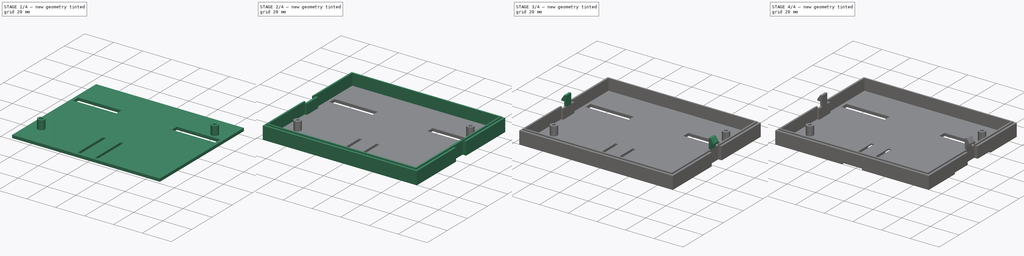
[diagram: build sequence overview — one tinted view per stage of 4, left to right]
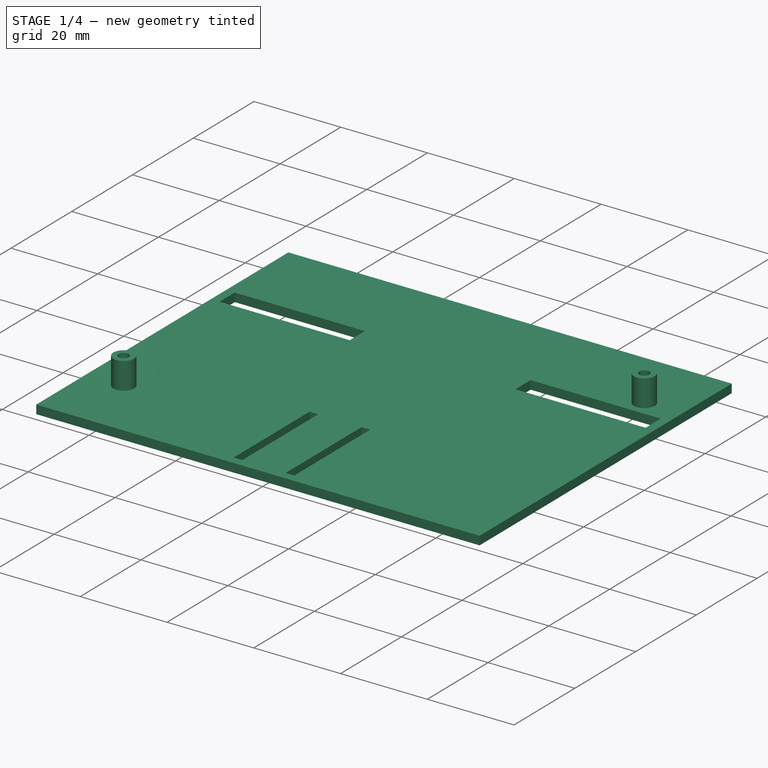
[diagram: stage 1 of 4 — iso view after this stage's code; geometry added in this stage tinted green]
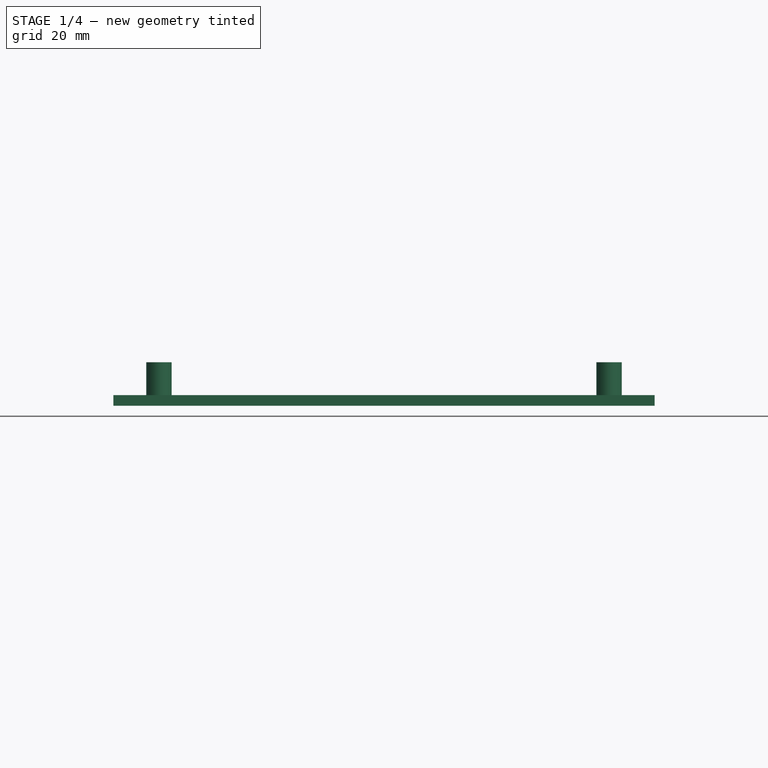
[diagram: stage 1 of 4 — front view after this stage's code; geometry added in this stage tinted green]
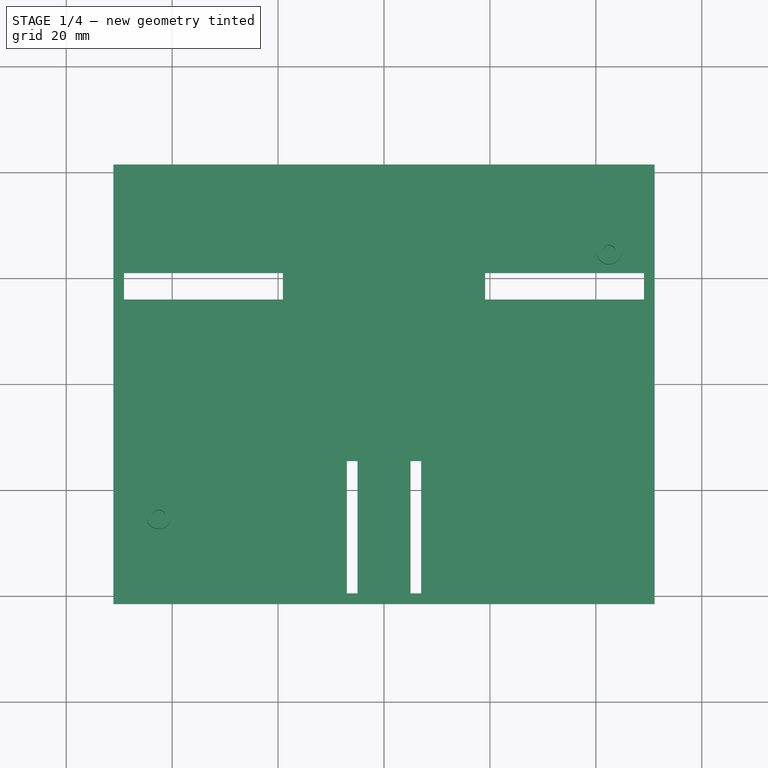
[diagram: stage 1 of 4 — top view after this stage's code; geometry added in this stage tinted green]
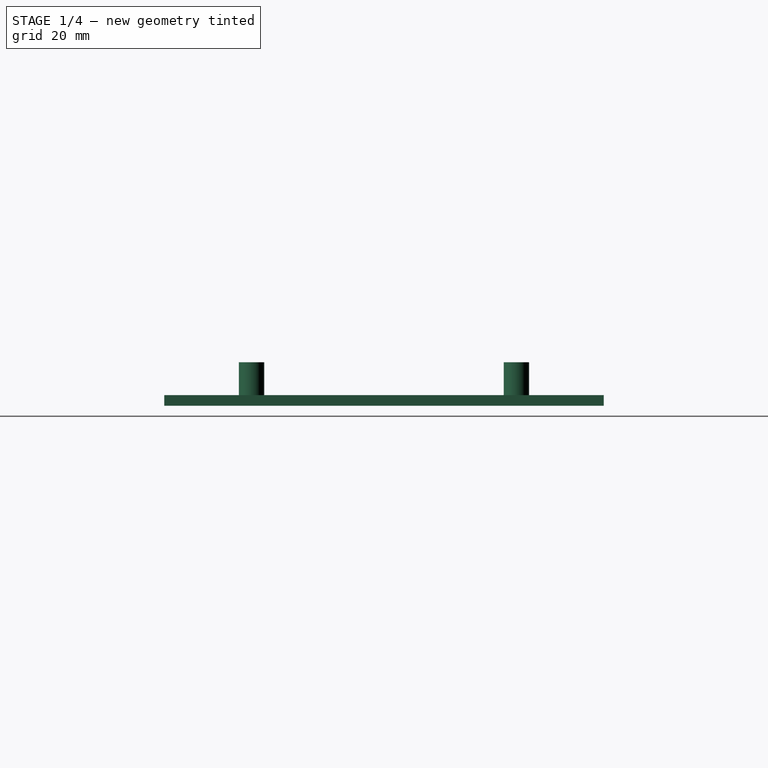
[diagram: stage 1 of 4 — right view after this stage's code; geometry added in this stage tinted green]
FCSTD DOCUMENT  (FreeCAD 1.0R39285 (Git))
Label: Parte inferior
License: All rights reserved
LicenseURL: https://en.wikipedia.org/wiki/All_rights_reserved
objects: Sketcher::SketchObject×10, PartDesign::Pad×7, PartDesign::Pocket×2, PartDesign::Mirrored×1, PartDesign::Body×1
note: 50 computed .brp shape members not serialized (recipe doc carries the construction recipe); baked Part::Feature solids carry a one-line shape summary decoded from their .brp

FEATURE [Sketcher::SketchObject] Sketch
  ArcFitTolerance = 1e-06
  AttachmentSupport = -> [XY_Plane]
  FullyConstrained = true
  MakeInternals = false
  MapMode = 5
  sketch-geometry (21):
    g0: LineSegment StartX=-51.1 StartY=-41.5 StartZ=0 EndX=51.1 EndY=-41.5 EndZ=0
    g1: LineSegment StartX=51.1 StartY=-41.5 StartZ=0 EndX=51.1 EndY=41.5 EndZ=0
    g2: LineSegment StartX=51.1 StartY=41.5 StartZ=0 EndX=-51.1 EndY=41.5 EndZ=0
    g3: LineSegment StartX=-51.1 StartY=41.5 StartZ=0 EndX=-51.1 EndY=-41.5 EndZ=0
    g4: GeomPoint [constr] X=0 Y=0 Z=0
    g5: LineSegment StartX=19.1 StartY=21 StartZ=0 EndX=19.1 EndY=16 EndZ=0
    g6: LineSegment StartX=19.1 StartY=16 StartZ=0 EndX=49.1 EndY=16 EndZ=0
    g7: LineSegment StartX=49.1 StartY=16 StartZ=0 EndX=49.1 EndY=21 EndZ=0
    g8: LineSegment StartX=49.1 StartY=21 StartZ=0 EndX=19.1 EndY=21 EndZ=0
    g9: LineSegment StartX=5 StartY=-14.5 StartZ=0 EndX=5 EndY=-39.5 EndZ=0
    g10: LineSegment StartX=5 StartY=-39.5 StartZ=0 EndX=7 EndY=-39.5 EndZ=0
    g11: LineSegment StartX=7 StartY=-39.5 StartZ=0 EndX=7 EndY=-14.5 EndZ=0
    g12: LineSegment StartX=7 StartY=-14.5 StartZ=0 EndX=5 EndY=-14.5 EndZ=0
    g13: LineSegment StartX=-19.1 StartY=21 StartZ=0 EndX=-19.1 EndY=16 EndZ=0
    g14: LineSegment StartX=-19.1 StartY=16 StartZ=0 EndX=-49.1 EndY=16 EndZ=0
    g15: LineSegment StartX=-49.1 StartY=16 StartZ=0 EndX=-49.1 EndY=21 EndZ=0
    g16: LineSegment StartX=-49.1 StartY=21 StartZ=0 EndX=-19.1 EndY=21 EndZ=0
    g17: LineSegment StartX=-5 StartY=-14.5 StartZ=0 EndX=-5 EndY=-39.5 EndZ=0
    g18: LineSegment StartX=-5 StartY=-39.5 StartZ=0 EndX=-7 EndY=-39.5 EndZ=0
    g19: LineSegment StartX=-7 StartY=-39.5 StartZ=0 EndX=-7 EndY=-14.5 EndZ=0
    g20: LineSegment StartX=-7 StartY=-14.5 StartZ=0 EndX=-5 EndY=-14.5 EndZ=0
  constraints (60):
    c: Coincident(g0,g1)
    c: Coincident(g1,g2)
    c: Coincident(g2,g3)
    c: Coincident(g3,g0)
    c: Horizontal(g0)
    c: Horizontal(g2)
    c: Vertical(g1)
    c: Vertical(g3)
    c: Symmetric(g2,g0,g4)
    c: Coincident(g4,g-1)
    c: Coincident(g5,g6)
    c: Coincident(g6,g7)
    c: Coincident(g7,g8)
    c: Coincident(g8,g5)
    c: Vertical(g5)
    c: Vertical(g7)
    c: Horizontal(g6)
    c: Horizontal(g8)
    c: Coincident(g9,g10)
    c: Coincident(g10,g11)
    c: Coincident(g11,g12)
    c: Coincident(g12,g9)
    c: Vertical(g9)
    c: Vertical(g11)
    c: Horizontal(g10)
    c: Horizontal(g12)
    c: DistanceX(g8,g8) = 30
    c: Distance(g-1,g6) = 16
    c: Distance(g0,g10) = 2
    c: Distance(g-2,g9) = 5
    c: Coincident(g13,g14)
    c: Coincident(g14,g15)
    c: Coincident(g15,g16)
    c: Coincident(g16,g13)
    c: Vertical(g13)
    c: Vertical(g15)
    c: Horizontal(g14)
    c: Horizontal(g16)
    c: Coincident(g17,g18)
    c: Coincident(g18,g19)
    c: Coincident(g19,g20)
    c: Coincident(g20,g17)
    c: Vertical(g17)
    c: Vertical(g19)
    c: Horizontal(g18)
    c: Horizontal(g20)
    c: Distance(g15,g15) = 5
    c: Distance(g20,g20) = 2
    c: DistanceX(g16,g16) = 30
    c: Distance(g3,g15) = 2
    c: DistanceY(g19,g19) = 25
    c: Distance(g-2,g1) = 51.1
    c: Distance(g-1,g0) = 41.5
    c: Distance(g5,g5) = 5
    c: Distance(g13,g-1) = 16
    c: DistanceY(g19,g13) = 35.5
    c: DistanceY(g11,g5) = 35.5
    c: Distance(g12,g12) = 2
    c: Distance(g-2,g17) = 5
    c: Distance(g1,g7) = 2
FEATURE [PartDesign::Pad] Pad
  Direction = (0,0,1)
  Length = 2
  Length2 = 10
  Profile = -> Sketch
  ReferenceAxis = -> Sketch [N_Axis]
  Refine = true
  Suppressed = false
  Type = 0
FEATURE [Sketcher::SketchObject] Sketch001
  ArcFitTolerance = 1e-06
  AttachmentSupport = -> [Pad]
  FullyConstrained = true
  MakeInternals = false
  MapMode = 5
  Placement = pos=(0,0,2) rot=(0,0,1;0rad)
  sketch-geometry (4):
    g0: Circle CenterX=-42.5 CenterY=-25 CenterZ=0 NormalX=0 NormalY=0 NormalZ=1 AngleXU=0 Radius=2.4
    g1: Circle CenterX=-42.5 CenterY=-25 CenterZ=0 NormalX=0 NormalY=0 NormalZ=1 AngleXU=0 Radius=1.2
    g2: Circle CenterX=42.5 CenterY=25 CenterZ=0 NormalX=0 NormalY=0 NormalZ=1 AngleXU=0 Radius=2.4
    g3: Circle CenterX=42.5 CenterY=25 CenterZ=0 NormalX=0 NormalY=0 NormalZ=1 AngleXU=0 Radius=1.2
  constraints (10):
    c: Coincident(g1,g0)
    c: Distance(g0,g-1) = 25
    c: DistanceX(g0,g-1) = 42.5
    c: Diameter(g0) = 4.8
    c: Diameter(g1) = 2.4
    c: Coincident(g3,g2)
    c: Diameter(g2) = 4.8
    c: Diameter(g3) = 2.4
    c: Distance(g2,g-2) = 42.5
    c: DistanceY(g-1,g2) = 25
FEATURE [PartDesign::Pad] Pad001
  BaseFeature = -> Pad
  Direction = (0,0,1)
  Length = 6.2
  Length2 = 10
  Profile = -> Sketch001
  ReferenceAxis = -> Sketch001 [N_Axis]
  Refine = true
  Suppressed = false
  Type = 0
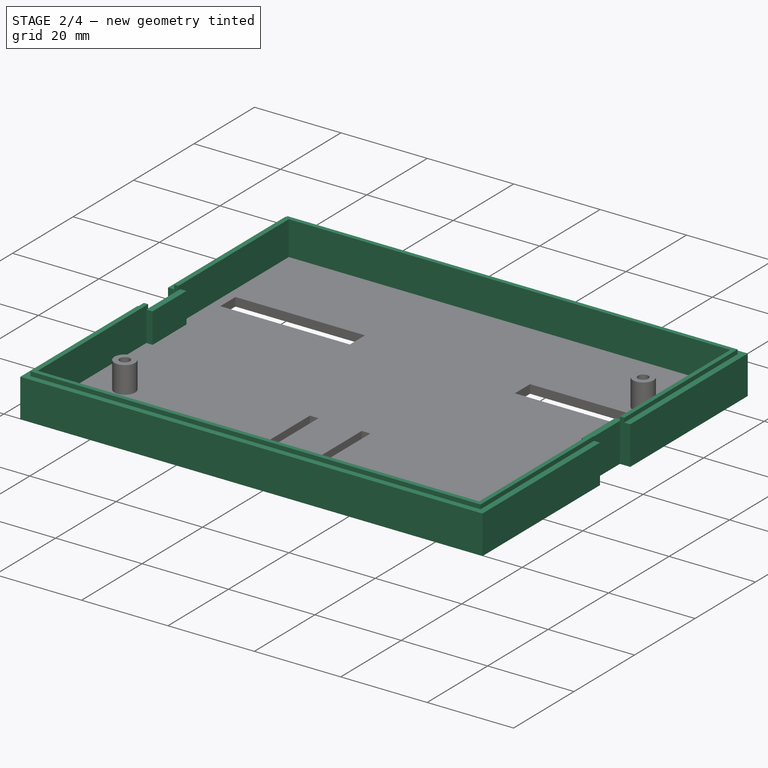
[diagram: stage 2 of 4 — iso view after this stage's code; geometry added in this stage tinted green]
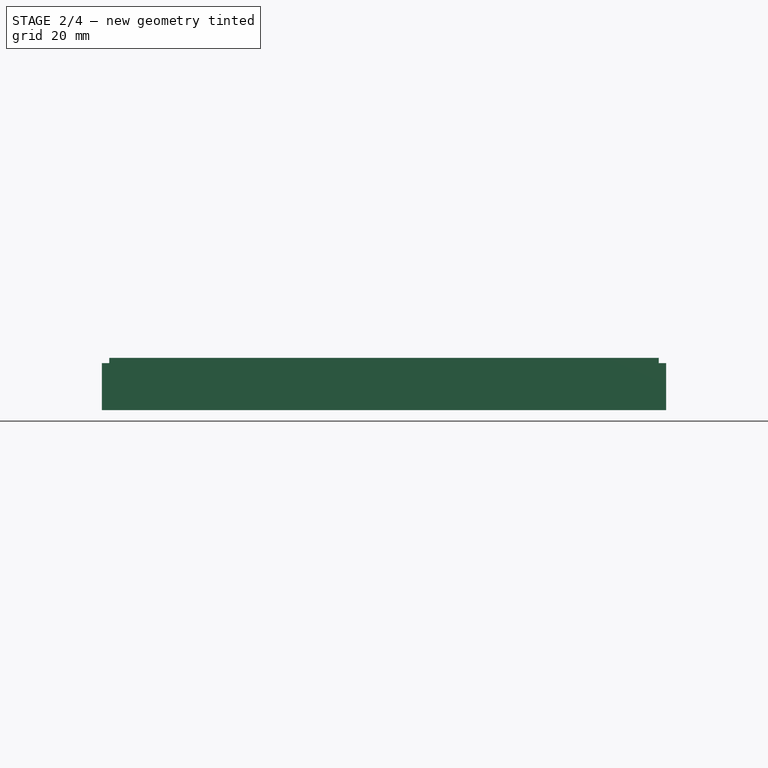
[diagram: stage 2 of 4 — front view after this stage's code; geometry added in this stage tinted green]
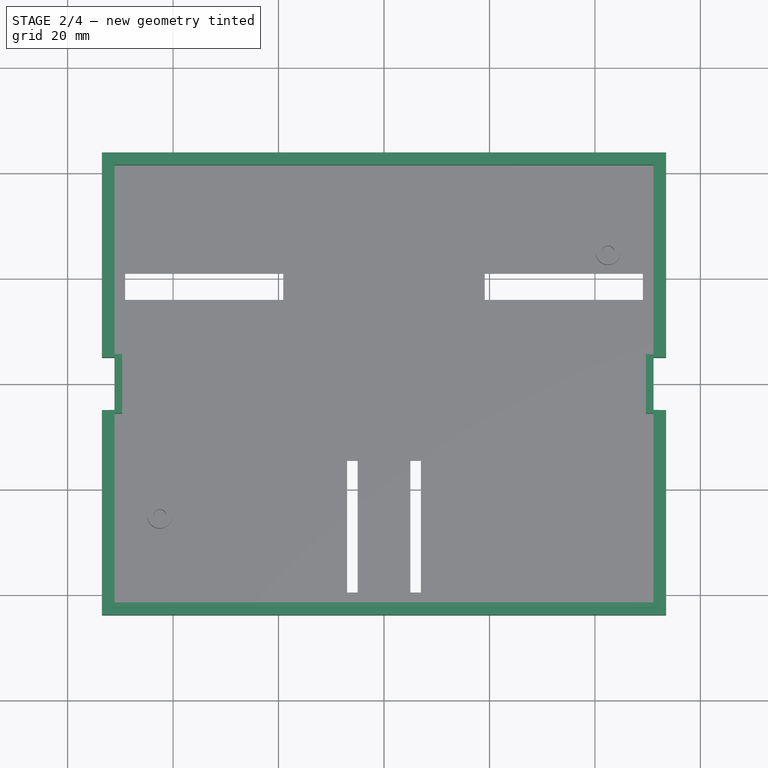
[diagram: stage 2 of 4 — top view after this stage's code; geometry added in this stage tinted green]
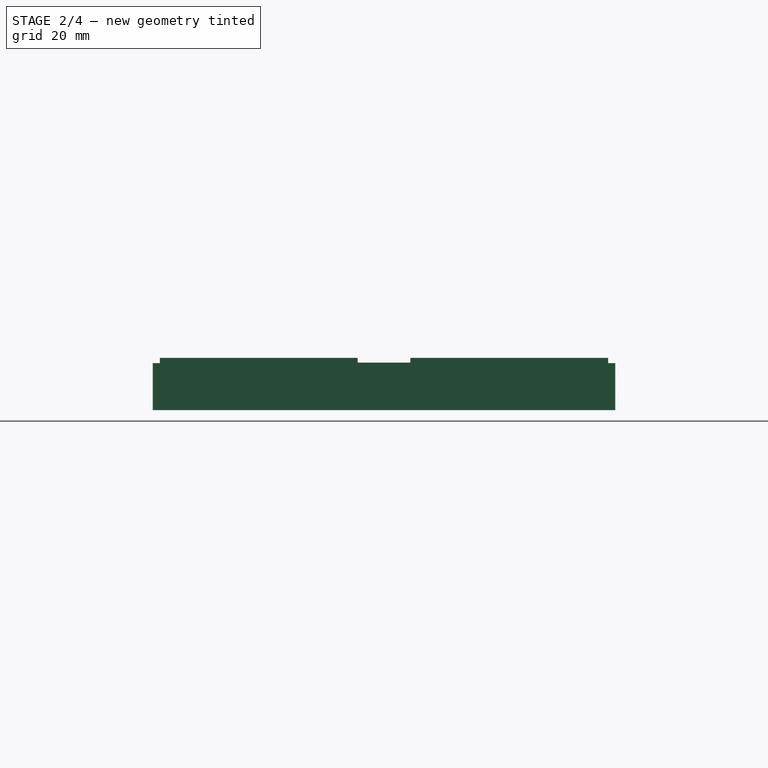
[diagram: stage 2 of 4 — right view after this stage's code; geometry added in this stage tinted green]
FEATURE [Sketcher::SketchObject] Sketch002
  ArcFitTolerance = 1e-06
  AttachmentSupport = -> [Pad001]
  FullyConstrained = true
  MakeInternals = false
  MapMode = 5
  Placement = pos=(0,0,2) rot=(0,0,1;0rad)
  sketch-geometry (16):
    g0: LineSegment StartX=51.1 StartY=5 StartZ=0 EndX=53.5 EndY=5 EndZ=0
    g1: LineSegment StartX=53.5 StartY=5 StartZ=0 EndX=53.5 EndY=43.85 EndZ=0
    g2: LineSegment StartX=53.5 StartY=43.85 StartZ=0 EndX=-53.5 EndY=43.85 EndZ=0
    g3: LineSegment StartX=-53.5 StartY=43.85 StartZ=0 EndX=-53.5 EndY=5 EndZ=0
    g4: LineSegment StartX=-53.5 StartY=5 StartZ=0 EndX=-51.1 EndY=5 EndZ=0
    g5: LineSegment StartX=-51.1 StartY=5 StartZ=0 EndX=-51.1 EndY=41.5 EndZ=0
    g6: LineSegment StartX=-51.1 StartY=41.5 StartZ=0 EndX=51.1 EndY=41.5 EndZ=0
    g7: LineSegment StartX=51.1 StartY=41.5 StartZ=0 EndX=51.1 EndY=5 EndZ=0
    g8: LineSegment StartX=51.1 StartY=-5 StartZ=0 EndX=53.5 EndY=-5 EndZ=0
    g9: LineSegment StartX=53.5 StartY=-5 StartZ=0 EndX=53.5 EndY=-43.85 EndZ=0
    g10: LineSegment StartX=53.5 StartY=-43.85 StartZ=0 EndX=-53.5 EndY=-43.85 EndZ=0
    g11: LineSegment StartX=-53.5 StartY=-43.85 StartZ=0 EndX=-53.5 EndY=-5 EndZ=0
    g12: LineSegment StartX=-53.5 StartY=-5 StartZ=0 EndX=-51.1 EndY=-5 EndZ=0
    g13: LineSegment StartX=-51.1 StartY=-5 StartZ=0 EndX=-51.1 EndY=-41.5 EndZ=0
    g14: LineSegment StartX=-51.1 StartY=-41.5 StartZ=0 EndX=51.1 EndY=-41.5 EndZ=0
    g15: LineSegment StartX=51.1 StartY=-41.5 StartZ=0 EndX=51.1 EndY=-5 EndZ=0
  constraints (48):
    c: Horizontal(g0)
    c: Coincident(g1,g0)
    c: Vertical(g1)
    c: Coincident(g2,g1)
    c: Horizontal(g2)
    c: Coincident(g3,g2)
    c: Vertical(g3)
    c: Coincident(g4,g3)
    c: Horizontal(g4)
    c: Coincident(g5,g4)
    c: Vertical(g5)
    c: Coincident(g6,g5)
    c: Horizontal(g6)
    c: Coincident(g7,g6)
    c: Coincident(g7,g0)
    c: Vertical(g7)
    c: DistanceX(g6,g6) = 102.2
    c: Distance(g6,g-2) = 51.1
    c: Distance(g-1,g6) = 41.5
    c: DistanceX(g2,g2) = 107
    c: Distance(g-1,g0) = 5
    c: Distance(g-1,g4) = 5
    c: Distance(g1,g-1) = 43.85
    c: Distance(g5,g3) = 2.4
    c: Horizontal(g8)
    c: Coincident(g9,g8)
    c: Vertical(g9)
    c: Coincident(g10,g9)
    c: Horizontal(g10)
    c: Coincident(g11,g10)
    c: Vertical(g11)
    c: Coincident(g12,g11)
    c: Horizontal(g12)
    c: Coincident(g13,g12)
    c: Vertical(g13)
    c: Coincident(g14,g13)
    c: Horizontal(g14)
    c: Coincident(g15,g14)
    c: Coincident(g15,g8)
    c: Vertical(g15)
    c: Distance(g13,g11) = 2.4
    c: Distance(g8,g8) = 2.4
    c: Distance(g-1,g8) = 5
    c: Distance(g-1,g12) = 5
    c: DistanceY(g10,g-1) = 43.85
    c: DistanceY(g14,g-1) = 41.5
    c: DistanceX(g-1,g9) = 53.5
    c: Distance(g13,g-2) = 51.1
FEATURE [PartDesign::Pad] Pad002
  BaseFeature = -> Pad001
  Direction = (0,0,1)
  Length = 6.9
  Length2 = 2
  Profile = -> Sketch002
  ReferenceAxis = -> Sketch002 [N_Axis]
  Refine = true
  Suppressed = false
  Type = 4
FEATURE [Sketcher::SketchObject] Sketch003
  ArcFitTolerance = 1e-06
  AttachmentSupport = -> [Pad002]
  FullyConstrained = true
  MakeInternals = false
  MapMode = 5
  Placement = pos=(0,0,8.9) rot=(0,0,1;0rad)
  sketch-geometry (16):
    g0: LineSegment StartX=-52.1 StartY=5 StartZ=0 EndX=-51.1 EndY=5 EndZ=0
    g1: LineSegment StartX=-51.1 StartY=5 StartZ=0 EndX=-51.1 EndY=41.5 EndZ=0
    g2: LineSegment StartX=-51.1 StartY=41.5 StartZ=0 EndX=51.1 EndY=41.5 EndZ=0
    g3: LineSegment StartX=52.1 StartY=42.5 StartZ=0 EndX=-52.1 EndY=42.5 EndZ=0
    g4: LineSegment StartX=51.1 StartY=41.5 StartZ=0 EndX=51.1 EndY=5 EndZ=0
    g5: LineSegment StartX=51.1 StartY=5 StartZ=0 EndX=52.1 EndY=5 EndZ=0
    g6: LineSegment StartX=52.1 StartY=42.5 StartZ=0 EndX=52.1 EndY=5 EndZ=0
    g7: LineSegment StartX=-52.1 StartY=42.5 StartZ=0 EndX=-52.1 EndY=5 EndZ=0
    g8: LineSegment StartX=-52.1 StartY=-5 StartZ=0 EndX=-51.1 EndY=-5 EndZ=0
    g9: LineSegment StartX=-51.1 StartY=-5 StartZ=0 EndX=-51.1 EndY=-41.5 EndZ=0
    g10: LineSegment StartX=-51.1 StartY=-41.5 StartZ=0 EndX=51.1 EndY=-41.5 EndZ=0
    g11: LineSegment StartX=52.1 StartY=-42.5 StartZ=0 EndX=-52.1 EndY=-42.5 EndZ=0
    g12: LineSegment StartX=51.1 StartY=-41.5 StartZ=0 EndX=51.1 EndY=-5 EndZ=0
    g13: LineSegment StartX=51.1 StartY=-5 StartZ=0 EndX=52.1 EndY=-5 EndZ=0
    g14: LineSegment StartX=52.1 StartY=-42.5 StartZ=0 EndX=52.1 EndY=-5 EndZ=0
    g15: LineSegment StartX=-52.1 StartY=-42.5 StartZ=0 EndX=-52.1 EndY=-5 EndZ=0
  constraints (52):
    c: Coincident(g0,g1)
    c: Horizontal(g0)
    c: Vertical(g1)
    c: Horizontal(g2)
    c: Horizontal(g3)
    c: Coincident(g4,g5)
    c: Vertical(g4)
    c: Horizontal(g5)
    c: PointOnObject(g4,g2)
    c: PointOnObject(g2,g1)
    c: Coincident(g6,g3)
    c: Coincident(g6,g5)
    c: Vertical(g6)
    c: Coincident(g7,g3)
    c: Coincident(g7,g0)
    c: Vertical(g7)
    c: Distance(g-1,g0) = 5
    c: Distance(g-1,g5) = 5
    c: DistanceY(g-1,g2) = 41.5
    c: Equal(g4,g1)
    c: Distance(g2,g-2) = 51.1
    c: DistanceX(g-1,g3) = 52.1
    c: DistanceX(g2,g2) = 102.2
    c: DistanceX(g3,g3) = 104.2
    c: Distance(g2,g3) = 1
    c: Distance(g6,g4) = 1
    c: Coincident(g8,g9)
    c: Horizontal(g8)
    c: Vertical(g9)
    c: Horizontal(g10)
    c: Horizontal(g11)
    c: Coincident(g12,g13)
    c: Vertical(g12)
    c: Horizontal(g13)
    c: PointOnObject(g12,g10)
    c: PointOnObject(g10,g9)
    c: Coincident(g14,g11)
    c: Coincident(g14,g13)
    c: Vertical(g14)
    c: Coincident(g15,g11)
    c: Coincident(g15,g8)
    c: Vertical(g15)
    c: Equal(g12,g9)
    c: Distance(g10,g11) = 1
    c: Distance(g14,g12) = 1
    c: Distance(g-1,g13) = 5
    c: Distance(g-1,g8) = 5
    c: DistanceX(g11,g-1) = 52.1
    c: Distance(g9,g-2) = 51.1
    c: DistanceX(g11,g11) = 104.2
    c: DistanceX(g10,g10) = 102.2
    c: DistanceY(g11,g-1) = 42.5
FEATURE [PartDesign::Pad] Pad003
  BaseFeature = -> Pad002
  Direction = (0,0,1)
  Length = 1
  Length2 = 10
  Profile = -> Sketch003
  ReferenceAxis = -> Sketch003 [N_Axis]
  Refine = true
  Suppressed = false
  Type = 0
FEATURE [Sketcher::SketchObject] Sketch004
  ArcFitTolerance = 1e-06
  AttachmentSupport = -> [Pad003]
  FullyConstrained = true
  MakeInternals = false
  MapMode = 5
  Placement = pos=(0,0,2) rot=(0,0,1;0rad)
  sketch-geometry (8):
    g0: LineSegment StartX=49.65 StartY=5.6 StartZ=0 EndX=49.65 EndY=-5.6 EndZ=0
    g1: LineSegment StartX=49.65 StartY=-5.6 StartZ=0 EndX=51.1 EndY=-5.6 EndZ=0
    g2: LineSegment StartX=51.1 StartY=-5.6 StartZ=0 EndX=51.1 EndY=5.6 EndZ=0
    g3: LineSegment StartX=51.1 StartY=5.6 StartZ=0 EndX=49.65 EndY=5.6 EndZ=0
    g4: LineSegment StartX=-49.65 StartY=5.6 StartZ=0 EndX=-49.65 EndY=-5.6 EndZ=0
    g5: LineSegment StartX=-49.65 StartY=-5.6 StartZ=0 EndX=-51.1 EndY=-5.6 EndZ=0
    g6: LineSegment StartX=-51.1 StartY=-5.6 StartZ=0 EndX=-51.1 EndY=5.6 EndZ=0
    g7: LineSegment StartX=-51.1 StartY=5.6 StartZ=0 EndX=-49.65 EndY=5.6 EndZ=0
  constraints (24):
    c: Coincident(g0,g1)
    c: Coincident(g1,g2)
    c: Coincident(g2,g3)
    c: Coincident(g3,g0)
    c: Vertical(g0)
    c: Vertical(g2)
    c: Horizontal(g1)
    c: Horizontal(g3)
    c: Distance(g3,g3) = 1.45
    c: Distance(g0,g-1) = 5.6
    c: DistanceY(g0,g0) = 11.2
    c: Distance(g-2,g2) = 51.1
    c: Coincident(g4,g5)
    c: Coincident(g5,g6)
    c: Coincident(g6,g7)
    c: Coincident(g7,g4)
    c: Vertical(g4)
    c: Vertical(g6)
    c: Horizontal(g5)
    c: Horizontal(g7)
    c: Distance(g7,g7) = 1.45
    c: Distance(g4,g-1) = 5.6
    c: DistanceY(g4,g4) = 11.2
    c: Distance(g-2,g6) = 51.1
FEATURE [PartDesign::Pad] Pad004
  BaseFeature = -> Pad003
  Direction = (0,0,1)
  Length = 7
  Length2 = 10
  Profile = -> Sketch004
  ReferenceAxis = -> Sketch004 [N_Axis]
  Refine = true
  Suppressed = false
  Type = 0
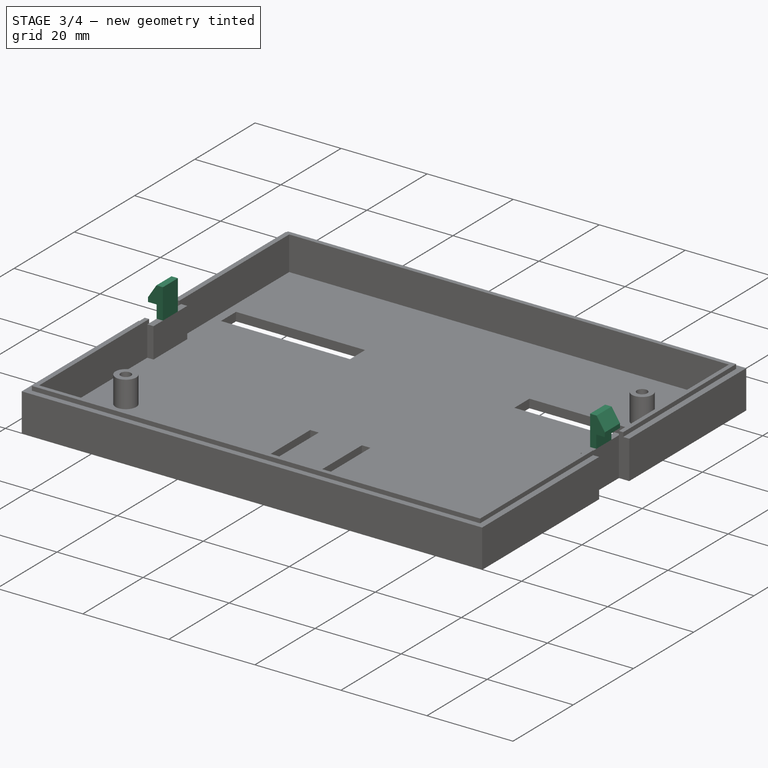
[diagram: stage 3 of 4 — iso view after this stage's code; geometry added in this stage tinted green]
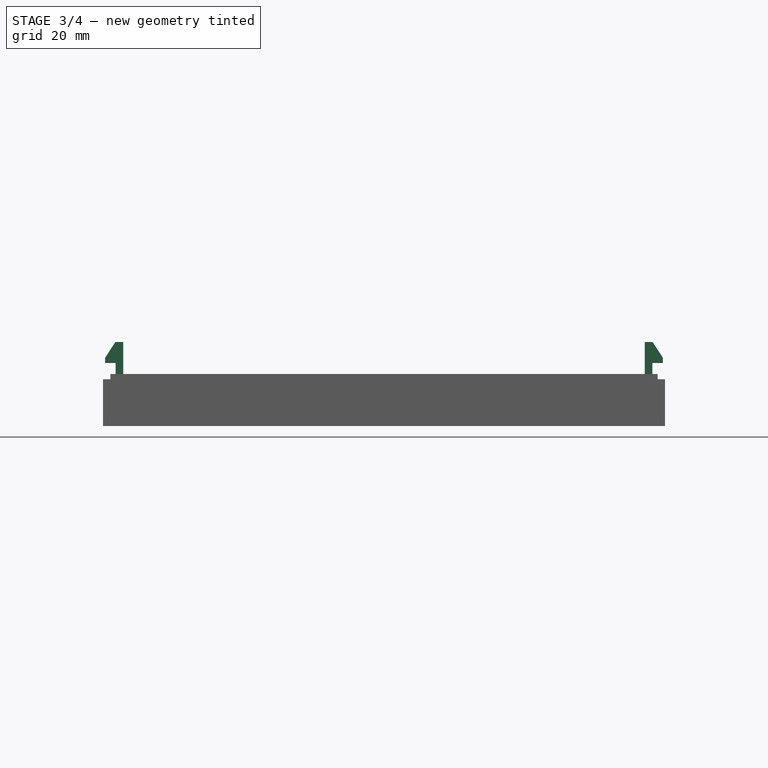
[diagram: stage 3 of 4 — front view after this stage's code; geometry added in this stage tinted green]
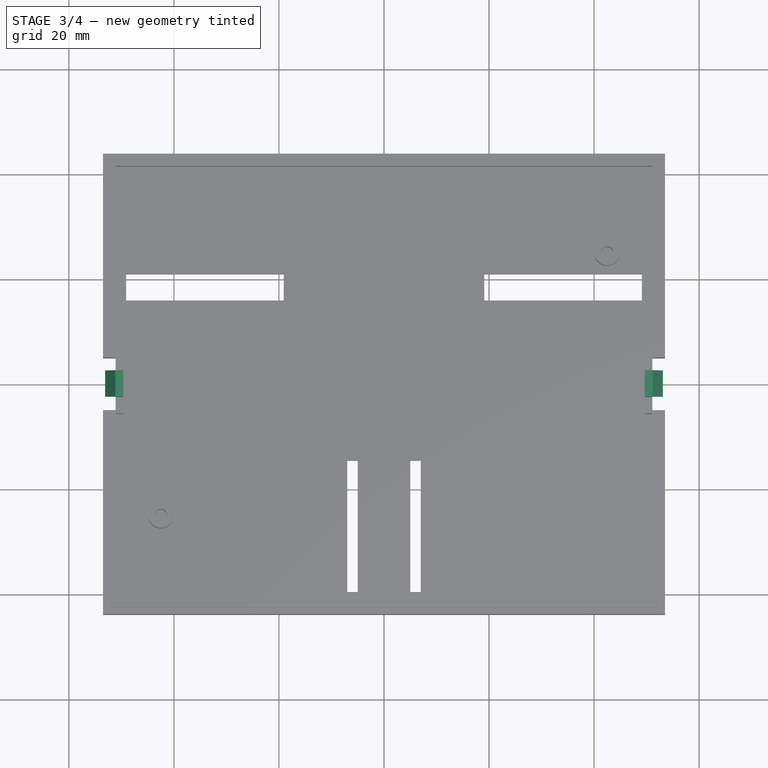
[diagram: stage 3 of 4 — top view after this stage's code; geometry added in this stage tinted green]
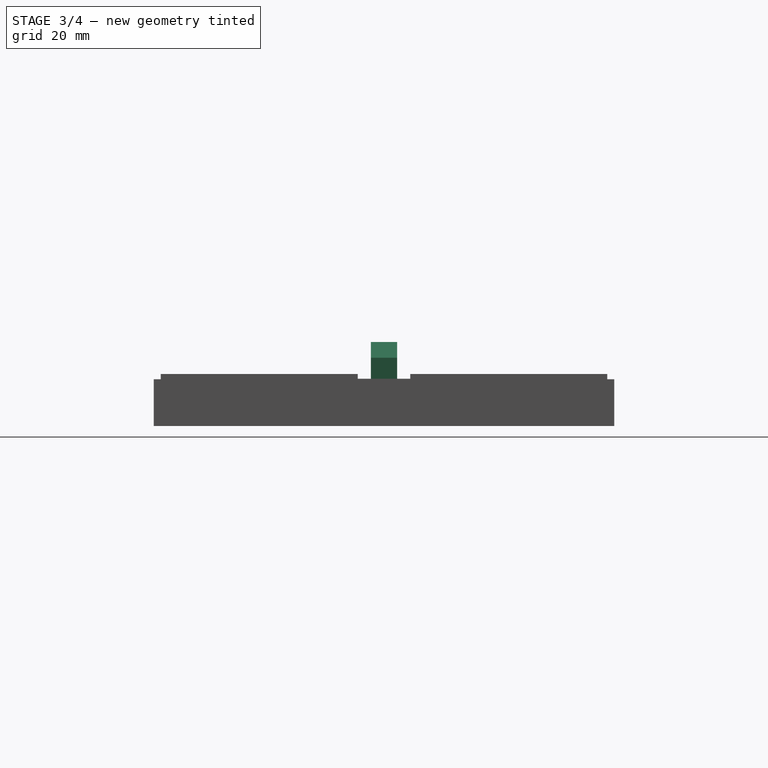
[diagram: stage 3 of 4 — right view after this stage's code; geometry added in this stage tinted green]
FEATURE [Sketcher::SketchObject] Sketch005
  ArcFitTolerance = 1e-06
  AttachmentSupport = -> [Pad004]
  FullyConstrained = true
  MakeInternals = false
  MapMode = 5
  Placement = pos=(0,0,9) rot=(0,0,1;0rad)
  sketch-geometry (10):
    g0: LineSegment StartX=49.65 StartY=-2.5 StartZ=0 EndX=51.1 EndY=-2.5 EndZ=0
    g1: LineSegment StartX=51.1 StartY=-2.5 StartZ=0 EndX=51.1 EndY=2.5 EndZ=0
    g2: LineSegment StartX=51.1 StartY=2.5 StartZ=0 EndX=49.65 EndY=2.5 EndZ=0
    g3: LineSegment StartX=49.65 StartY=2.5 StartZ=0 EndX=49.65 EndY=-2.5 EndZ=0
    g4: GeomPoint [constr] X=50.375 Y=0 Z=0
    g5: LineSegment StartX=-49.65 StartY=-2.5 StartZ=0 EndX=-51.1 EndY=-2.5 EndZ=0
    g6: LineSegment StartX=-51.1 StartY=-2.5 StartZ=0 EndX=-51.1 EndY=2.5 EndZ=0
    g7: LineSegment StartX=-51.1 StartY=2.5 StartZ=0 EndX=-49.65 EndY=2.5 EndZ=0
    g8: LineSegment StartX=-49.65 StartY=2.5 StartZ=0 EndX=-49.65 EndY=-2.5 EndZ=0
    g9: GeomPoint [constr] X=-50.375 Y=0 Z=0
  constraints (26):
    c: Coincident(g0,g1)
    c: Coincident(g1,g2)
    c: Coincident(g2,g3)
    c: Coincident(g3,g0)
    c: Horizontal(g0)
    c: Horizontal(g2)
    c: Vertical(g1)
    c: Vertical(g3)
    c: Symmetric(g2,g0,g4)
    c: PointOnObject(g4,g-1)
    c: Distance(g2,g-1) = 2.5
    c: Distance(g0,g0) = 1.45
    c: Distance(g-2,g1) = 51.1
    c: Coincident(g5,g6)
    c: Coincident(g6,g7)
    c: Coincident(g7,g8)
    c: Coincident(g8,g5)
    c: Horizontal(g5)
    c: Horizontal(g7)
    c: Vertical(g6)
    c: Vertical(g8)
    c: Symmetric(g7,g5,g9)
    c: Distance(g5,g5) = 1.45
    c: DistanceY(g8,g8) = 5
    c: Distance(g7,g-1) = 2.5
    c: Distance(g-2,g6) = 51.1
FEATURE [PartDesign::Pad] Pad005
  BaseFeature = -> Pad004
  Direction = (0,0,1)
  Length = 3
  Length2 = 10
  Profile = -> Sketch005
  ReferenceAxis = -> Sketch005 [N_Axis]
  Refine = true
  Suppressed = false
  Type = 0
FEATURE [Sketcher::SketchObject] Sketch006
  ArcFitTolerance = 1e-06
  AttachmentSupport = -> [Pad005]
  FullyConstrained = true
  MakeInternals = false
  MapMode = 5
  Placement = pos=(0,-2.5,0) rot=(1,0,0;1.5708rad)
  sketch-geometry (6):
    g0: LineSegment StartX=-51.1 StartY=12 StartZ=0 EndX=-53.1 EndY=12 EndZ=0
    g1: LineSegment StartX=-53.1 StartY=12 StartZ=0 EndX=-53.1 EndY=13 EndZ=0
    g2: LineSegment StartX=-53.1 StartY=13 StartZ=0 EndX=-51.15 EndY=16 EndZ=0
    g3: LineSegment StartX=-51.15 StartY=16 StartZ=0 EndX=-49.65 EndY=16 EndZ=0
    g4: LineSegment StartX=-49.65 StartY=16 StartZ=0 EndX=-49.65 EndY=12 EndZ=0
    g5: LineSegment StartX=-49.65 StartY=12 StartZ=0 EndX=-51.1 EndY=12 EndZ=0
  constraints (18):
    c: Horizontal(g0)
    c: Coincident(g1,g0)
    c: Vertical(g1)
    c: Coincident(g2,g1)
    c: Coincident(g3,g2)
    c: Horizontal(g3)
    c: Coincident(g4,g3)
    c: Coincident(g5,g0)
    c: Horizontal(g5)
    c: Vertical(g4)
    c: Coincident(g5,g4)
    c: Distance(g5,g3) = 4
    c: Distance(g1,g1) = 1
    c: Angle(g2,g1) = -2.56522
    c: Distance(g0,g-1) = 12
    c: DistanceX(g4,g-1) = 49.65
    c: DistanceX(g3,g3) = 1.5
    c: DistanceX(g0,g0) = 2
FEATURE [PartDesign::Pad] Pad006
  BaseFeature = -> Pad005
  Direction = (0,-1,2e-16)
  Length = 10
  Length2 = 10
  Profile = -> Sketch006
  ReferenceAxis = -> Sketch006 [N_Axis]
  Refine = true
  Suppressed = false
  Type = 3
  UpToFace = -> Pad005 [Face47]
FEATURE [PartDesign::Mirrored] Mirrored
  BaseFeature = -> Pad006
  MirrorPlane = -> YZ_Plane
  Originals = -> [Pad006]
  Refine = true
  Suppressed = false
  TransformMode = 0
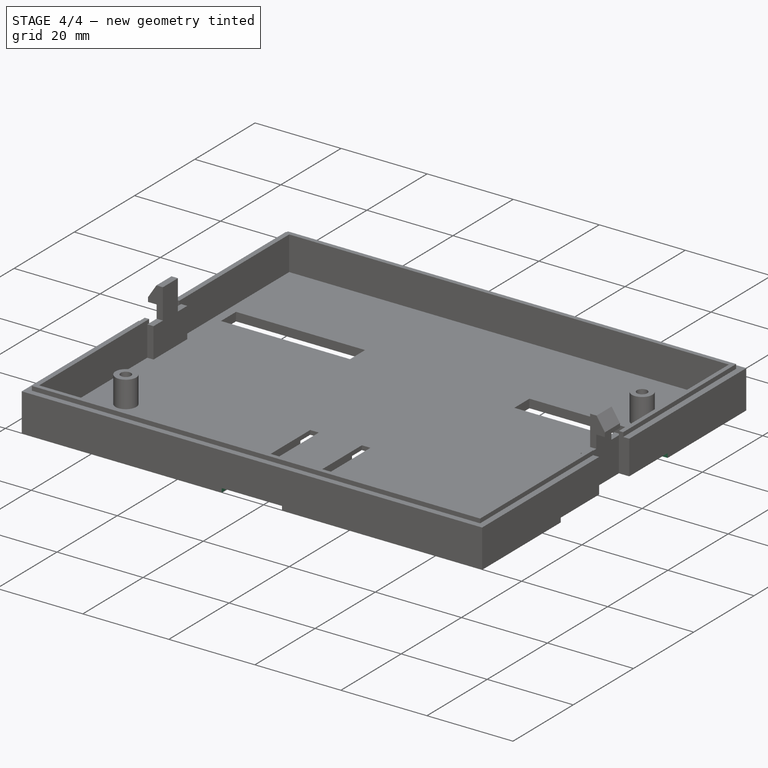
[diagram: stage 4 of 4 — iso view after this stage's code; geometry added in this stage tinted green]
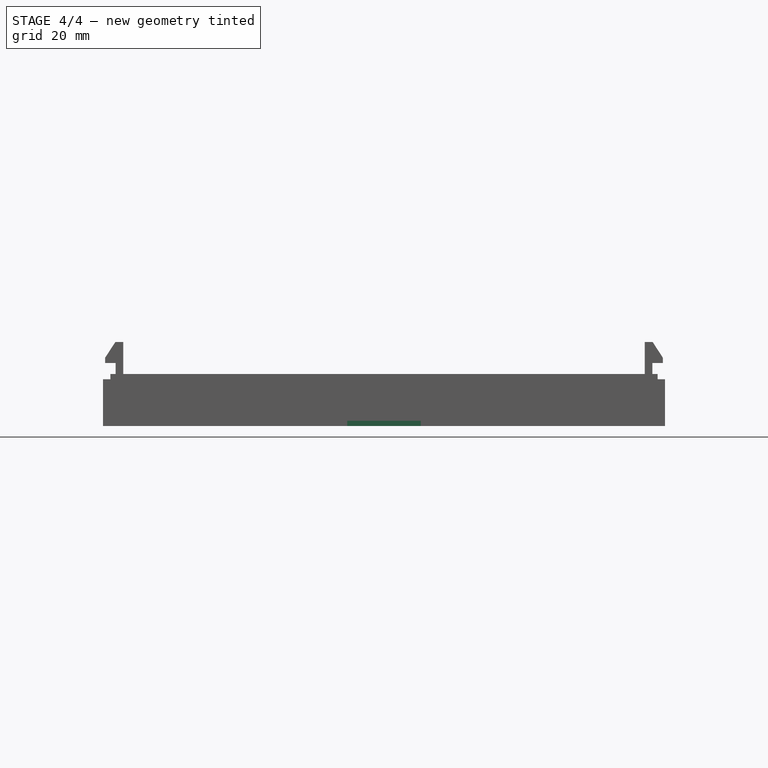
[diagram: stage 4 of 4 — front view after this stage's code; geometry added in this stage tinted green]
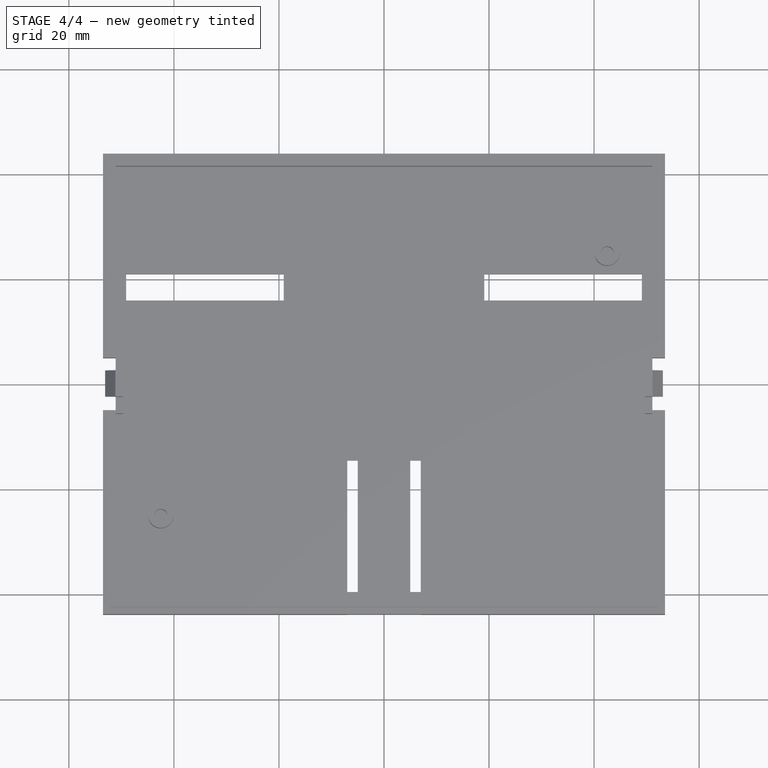
[diagram: stage 4 of 4 — top view after this stage's code; geometry added in this stage tinted green]
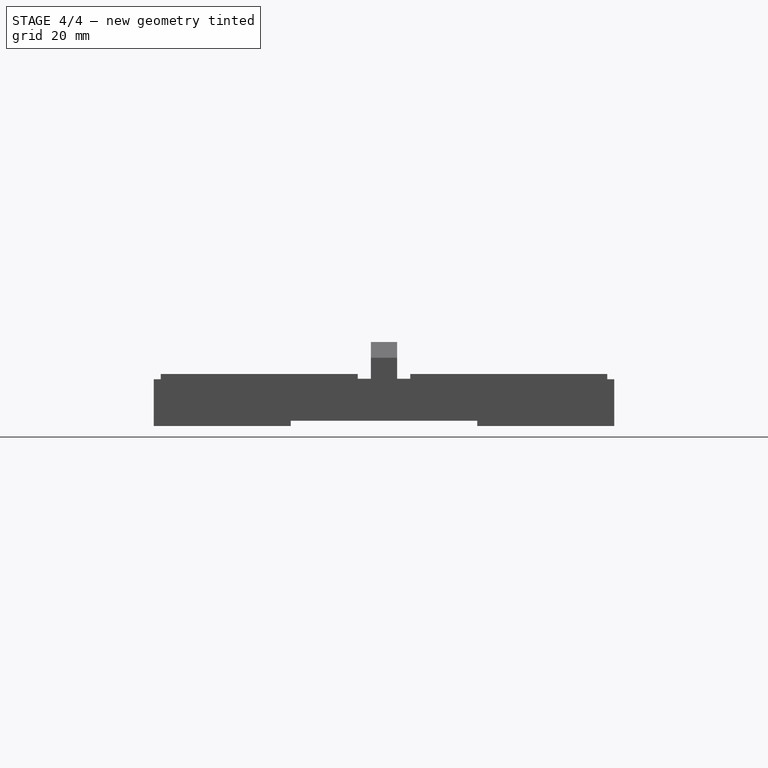
[diagram: stage 4 of 4 — right view after this stage's code; geometry added in this stage tinted green]
FEATURE [Sketcher::SketchObject] Sketch007
  ArcFitTolerance = 1e-06
  AttachmentSupport = -> [Mirrored]
  FullyConstrained = true
  MakeInternals = false
  MapMode = 5
  Placement = pos=(51.1,0,-2.5e-14) rot=(0.57735,0.57735,0.57735;2.0944rad)
FEATURE [Sketcher::SketchObject] Sketch008
  ArcFitTolerance = 1e-06
  AttachmentSupport = -> [Mirrored]
  FullyConstrained = true
  MakeInternals = false
  MapMode = 5
  Placement = pos=(53.5,0,0) rot=(0.57735,0.57735,0.57735;2.0944rad)
  sketch-geometry (4):
    g0: LineSegment StartX=-17.75 StartY=0 StartZ=0 EndX=17.75 EndY=0 EndZ=0
    g1: LineSegment StartX=17.75 StartY=0 StartZ=0 EndX=17.75 EndY=1 EndZ=0
    g2: LineSegment StartX=17.75 StartY=1 StartZ=0 EndX=-17.75 EndY=1 EndZ=0
    g3: LineSegment StartX=-17.75 StartY=1 StartZ=0 EndX=-17.75 EndY=0 EndZ=0
  constraints (12):
    c: Coincident(g0,g1)
    c: Coincident(g1,g2)
    c: Coincident(g2,g3)
    c: Coincident(g3,g0)
    c: Horizontal(g0)
    c: Horizontal(g2)
    c: Vertical(g1)
    c: Vertical(g3)
    c: Distance(g1,g3) = 35.5
    c: Distance(g0,g2) = 1
    c: PointOnObject(g0,g-1)
    c: Distance(g-1,g1) = 17.75
FEATURE [PartDesign::Pocket] Pocket
  BaseFeature = -> Mirrored
  Direction = (-1,0,0)
  Length = 5
  Length2 = 5
  Profile = -> Sketch008
  ReferenceAxis = -> Sketch008 [N_Axis]
  Refine = true
  Suppressed = false
  Type = 1
FEATURE [Sketcher::SketchObject] Sketch009
  ArcFitTolerance = 1e-06
  AttachmentSupport = -> [Pocket]
  FullyConstrained = true
  MakeInternals = false
  MapMode = 5
  Placement = pos=(0,-43.85,0) rot=(1,0,0;1.5708rad)
  sketch-geometry (4):
    g0: LineSegment StartX=-7 StartY=0 StartZ=0 EndX=7 EndY=0 EndZ=0
    g1: LineSegment StartX=7 StartY=0 StartZ=0 EndX=7 EndY=1 EndZ=0
    g2: LineSegment StartX=7 StartY=1 StartZ=0 EndX=-7 EndY=1 EndZ=0
    g3: LineSegment StartX=-7 StartY=1 StartZ=0 EndX=-7 EndY=0 EndZ=0
  constraints (12):
    c: Coincident(g0,g1)
    c: Coincident(g1,g2)
    c: Coincident(g2,g3)
    c: Coincident(g3,g0)
    c: Horizontal(g0)
    c: Horizontal(g2)
    c: Vertical(g1)
    c: Vertical(g3)
    c: Distance(g1,g3) = 14
    c: Distance(g0,g2) = 1
    c: PointOnObject(g0,g-1)
    c: Distance(g-2,g1) = 7
FEATURE [PartDesign::Pocket] Pocket001
  BaseFeature = -> Pocket
  Direction = (0,1,-2e-16)
  Length = 4.5
  Length2 = 5
  Profile = -> Sketch009
  ReferenceAxis = -> Sketch009 [N_Axis]
  Refine = true
  Suppressed = false
  Type = 0
FEATURE [PartDesign::Body] Body  label="Cuerpo"
  AllowCompound = false
  Group = -> [Sketch,Pad,Sketch001,Pad001,Sketch002,Pad002,Sketch003,Pad003,Sketch004,Pad004,Sketch005,Pad005,Sketch006,Pad006,Mirrored,Sketch007,Sketch008,Pocket,Sketch009,Pocket001]
  Origin = -> Origin
  Tip = -> Pocket001
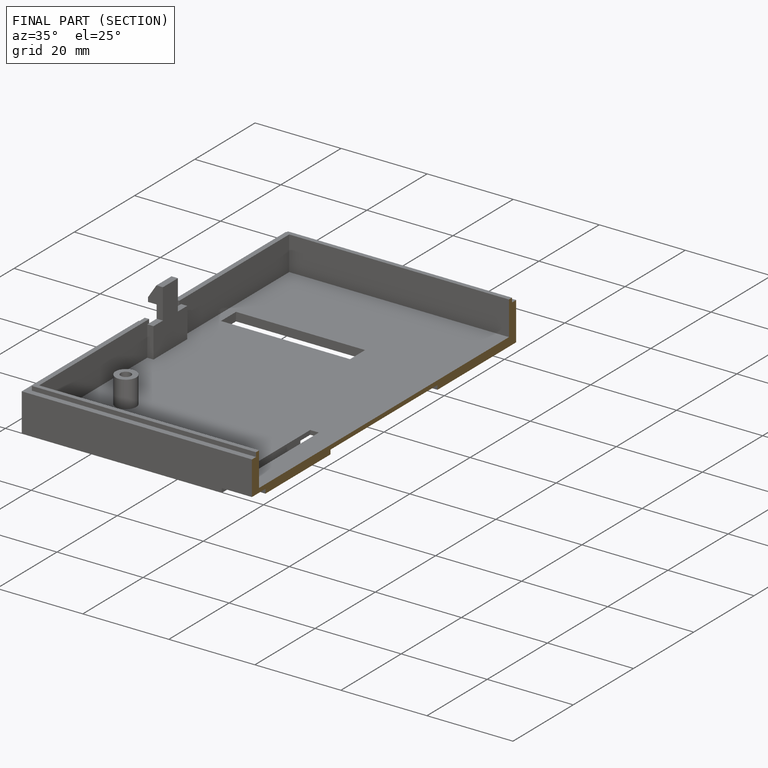
[diagram: finished part — half-section view (interior)]
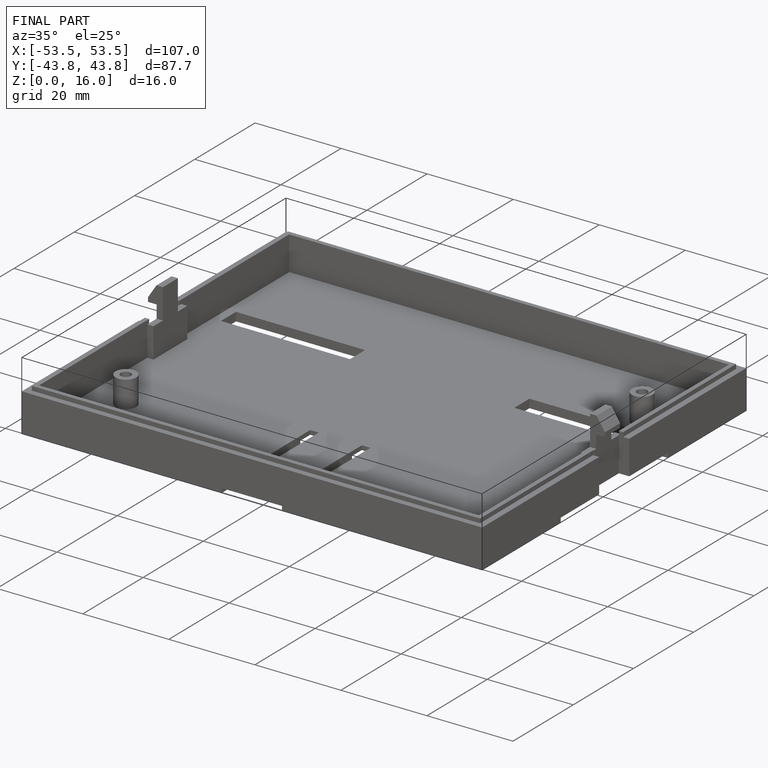
[diagram: finished part — iso view with bounding-box wireframe]
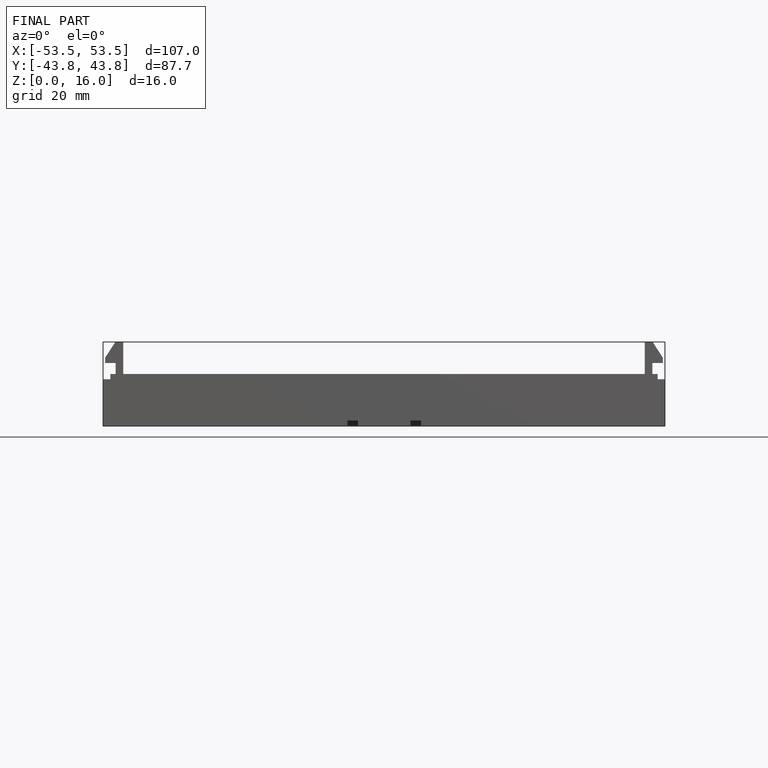
[diagram: finished part — front view with bounding-box wireframe]
